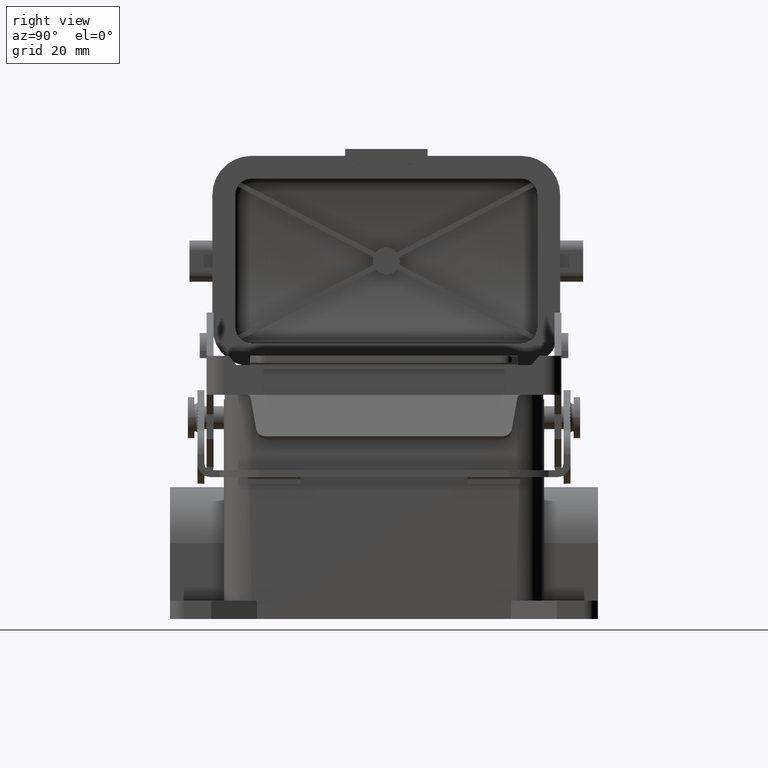
[diagram: clean part render]
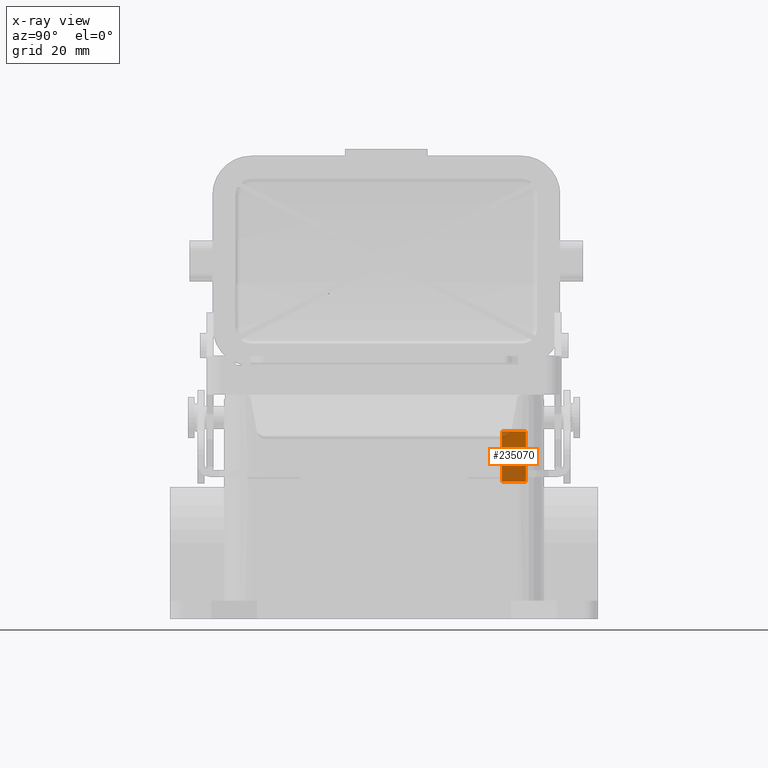
[diagram: x-ray — body ghosted, one internal face saturated and labeled with its STEP entity id]
A machine part, right view, then the same camera in x-ray: the body is ghosted and one INTERNAL B-rep face — a face not visible from any outside direction — is saturated and labeled: STEP entity #235070.
In plain terms, the highlighted planar face has unit normal (-1, 0, 0).
Its self-contained STEP definition (entity closure, byte-faithful):
#230990=CARTESIAN_POINT('',(31.5,-10.,-14.));
#231000=VERTEX_POINT('',#230990);
#231250=CARTESIAN_POINT('',(36.75,-10.,-14.));
#231260=VERTEX_POINT('',#231250);
#231290=CARTESIAN_POINT('',(36.75,-10.,-14.));
#231300=DIRECTION('',(-1.,0.,0.));
#231310=VECTOR('',#231300,5.25);
#231320=LINE('',#231290,#231310);
#231330=EDGE_CURVE('',#231260,#231000,#231320,.T.);
#231430=CARTESIAN_POINT('',(31.5,-10.,-3.));
#231440=DIRECTION('',(0.,0.,-1.));
#231450=VECTOR('',#231440,11.);
#231460=LINE('',#231430,#231450);
#231470=CARTESIAN_POINT('',(31.5,-10.,-3.));
#231480=VERTEX_POINT('',#231470);
#231490=EDGE_CURVE('',#231480,#231000,#231460,.T.);
#232610=CARTESIAN_POINT('',(36.75,-10.,-3.));
#232620=DIRECTION('',(-1.,0.,0.));
#232630=VECTOR('',#232620,5.25000000000002);
#232640=LINE('',#232610,#232630);
#232650=CARTESIAN_POINT('',(36.75,-10.,-3.));
#232660=VERTEX_POINT('',#232650);
#232670=EDGE_CURVE('',#232660,#231480,#232640,.T.);
#234860=CARTESIAN_POINT('',(36.75,-10.,-14.));
#234870=DIRECTION('',(0.,0.,1.));
#234880=VECTOR('',#234870,11.);
#234890=LINE('',#234860,#234880);
#234900=EDGE_CURVE('',#231260,#232660,#234890,.T.);
#234960=CARTESIAN_POINT('',(38.5,-10.,-3.));
#234970=DIRECTION('',(0.,1.,0.));
#234980=DIRECTION('',(0.,0.,1.));
#234990=AXIS2_PLACEMENT_3D('',#234960,#234970,#234980);
#235000=PLANE('',#234990);
#235010=ORIENTED_EDGE('',*,*,#234900,.F.);
#235020=ORIENTED_EDGE('',*,*,#232670,.F.);
#235030=ORIENTED_EDGE('',*,*,#231490,.F.);
#235040=ORIENTED_EDGE('',*,*,#231330,.T.);
#235050=EDGE_LOOP('',(#235040,#235030,#235020,#235010));
#235060=FACE_OUTER_BOUND('',#235050,.T.);
#235070=ADVANCED_FACE('',(#235060),#235000,.T.);